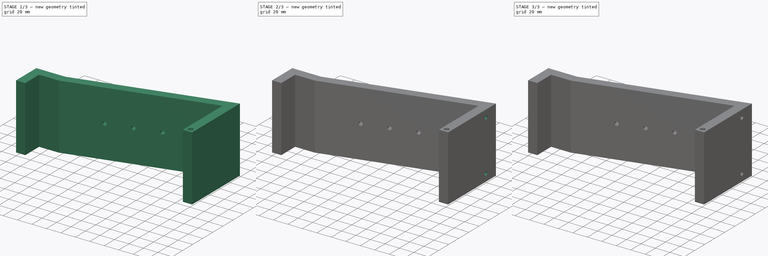
[diagram: build sequence overview — one tinted view per stage of 3, left to right]
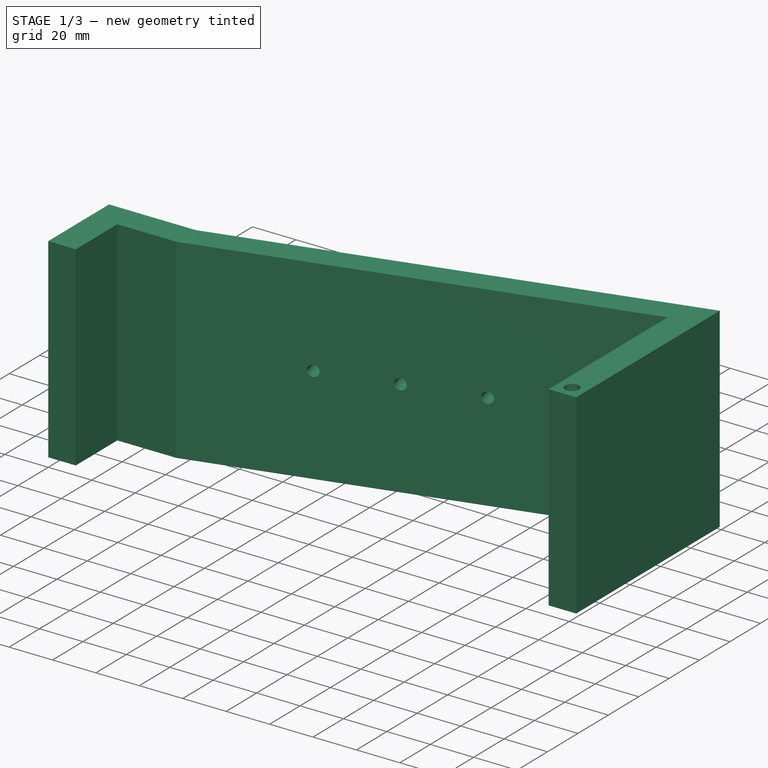
[diagram: stage 1 of 3 — iso view after this stage's code; geometry added in this stage tinted green]
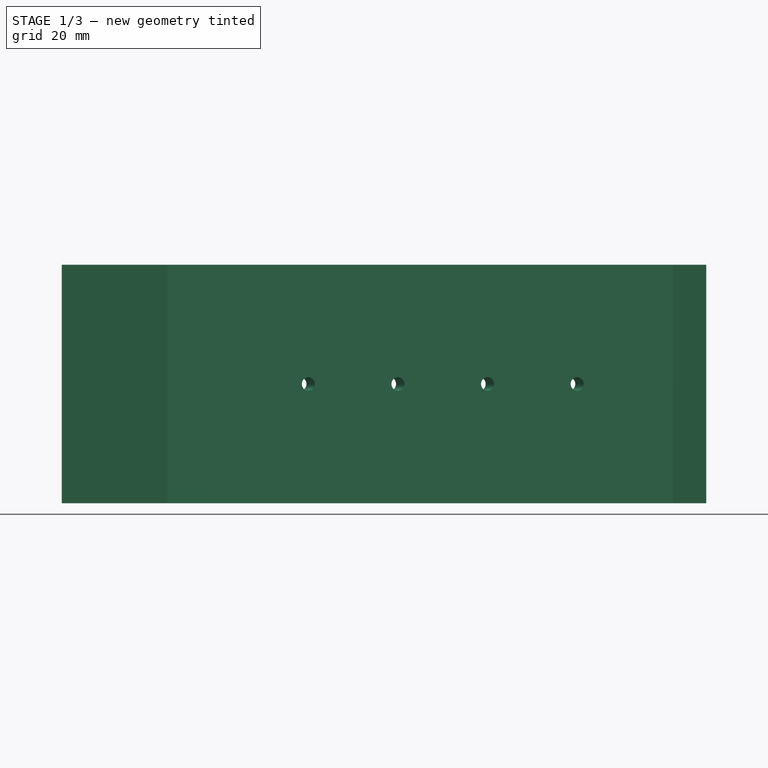
[diagram: stage 1 of 3 — front view after this stage's code; geometry added in this stage tinted green]
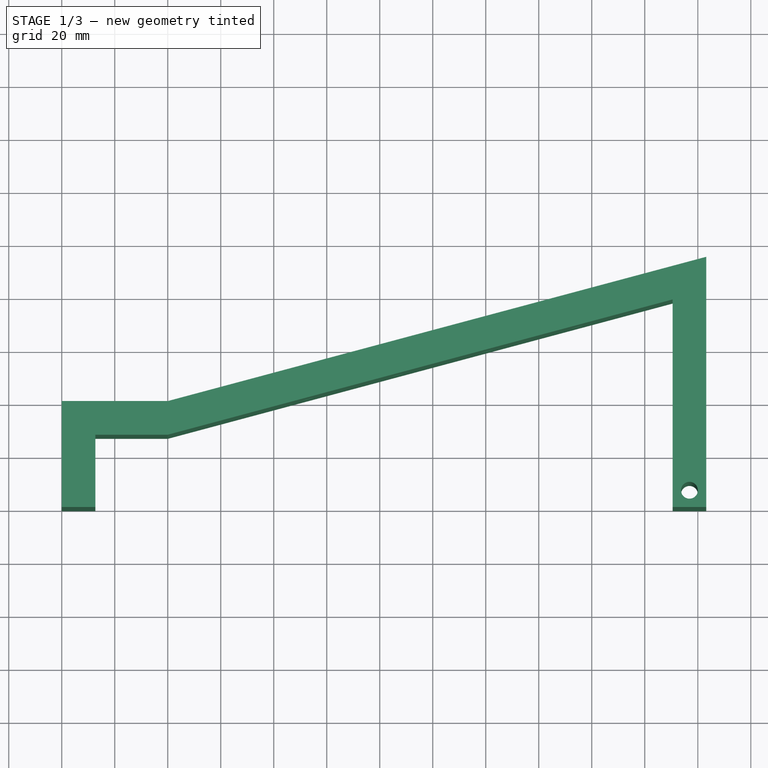
[diagram: stage 1 of 3 — top view after this stage's code; geometry added in this stage tinted green]
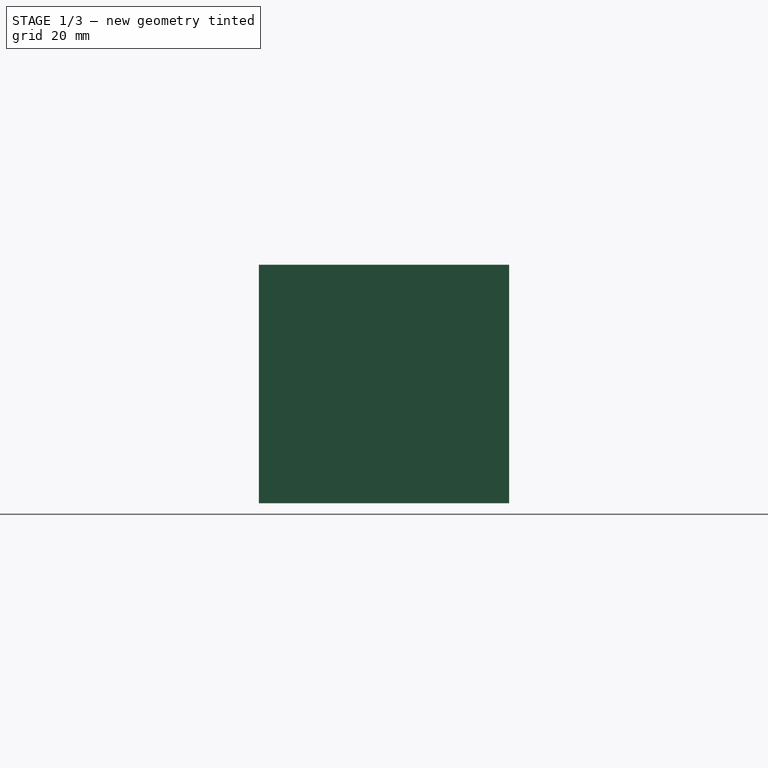
[diagram: stage 1 of 3 — right view after this stage's code; geometry added in this stage tinted green]
FCSTD DOCUMENT  (FreeCAD 1.0R39285 (Git))
Label: base
License: All rights reserved
LicenseURL: https://en.wikipedia.org/wiki/All_rights_reserved
objects: Sketcher::SketchObject×6, PartDesign::Pocket×4, PartDesign::Pad×2, PartDesign::Body×1, App::Part×1
note: 31 computed .brp shape members not serialized (recipe doc carries the construction recipe); baked Part::Feature solids carry a one-line shape summary decoded from their .brp

FEATURE [Sketcher::SketchObject] Sketch
  ArcFitTolerance = 1e-06
  AttachmentSupport = -> [XY_Plane001]
  FullyConstrained = true
  MakeInternals = false
  MapMode = 5
  sketch-geometry (11):
    g0: LineSegment StartX=-40 StartY=0 StartZ=0 EndX=-27.3 EndY=0 EndZ=0
    g1: LineSegment StartX=-27.3 StartY=0 StartZ=0 EndX=-27.3 EndY=27.3 EndZ=0
    g2: LineSegment StartX=-27.3 StartY=27.3 StartZ=0 EndX=0 EndY=27.3 EndZ=0
    g3: LineSegment StartX=0 StartY=27.3 StartZ=0 EndX=190.5 EndY=78.3443 EndZ=0
    g4: LineSegment StartX=190.5 StartY=78.3443 StartZ=0 EndX=190.5 EndY=0 EndZ=0
    g5: LineSegment StartX=190.5 StartY=0 StartZ=0 EndX=203.2 EndY=0 EndZ=0
    g6: LineSegment StartX=203.2 StartY=0 StartZ=0 EndX=203.2 EndY=94.4473 EndZ=0
    g7: LineSegment StartX=203.2 StartY=94.4473 StartZ=0 EndX=0 EndY=40 EndZ=0
    g8: LineSegment StartX=0 StartY=40 StartZ=0 EndX=-40 EndY=40 EndZ=0
    g9: LineSegment StartX=-40 StartY=40 StartZ=0 EndX=-40 EndY=0 EndZ=0
    g10: Circle CenterX=196.85 CenterY=6.35 CenterZ=0 NormalX=0 NormalY=0 NormalZ=1 AngleXU=0 Radius=3.175
  constraints (33):
    c: PointOnObject(g0,g-1)
    c: PointOnObject(g0,g-1)
    c: Coincident(g0,g1)
    c: Vertical(g1)
    c: Coincident(g1,g2)
    c: Horizontal(g2)
    c: Coincident(g2,g3)
    c: Coincident(g3,g4)
    c: PointOnObject(g4,g-1)
    c: Vertical(g4)
    c: Coincident(g4,g5)
    c: PointOnObject(g5,g-1)
    c: Coincident(g5,g6)
    c: Vertical(g6)
    c: Coincident(g6,g7)
    c: Coincident(g7,g8)
    c: Horizontal(g8)
    c: Coincident(g8,g9)
    c: Coincident(g9,g0)
    c: Vertical(g9)
    c: DistanceX(g8,g8) = 40
    c: DistanceX(g0,g0) = 12.7
    c: DistanceY(g9,g9) = 40
    c: DistanceY(g1,g8) = 12.7
    c: DistanceX(g2,g7) = 0
    c: DistanceX(g5,g5) = 12.7
    c: Angle(g3,g4) = 1.309
    c: Angle(g7,g6) = 1.309
    c: DistanceX(g2,g-1) = 0
    c: DistanceX(g7,g5) = 203.2
    c: Diameter(g10) = 6.35
    c: DistanceY(g-1,g10) = 6.35
    c: DistanceX(g-1,g10) = 196.85
FEATURE [PartDesign::Pad] Pad  label="MainPad"
  Direction = (0,0,1)
  Length = 90
  Length2 = 10
  Profile = -> Sketch
  ReferenceAxis = -> Sketch [N_Axis]
  Refine = true
  Suppressed = false
  Type = 0
FEATURE [Sketcher::SketchObject] Sketch001
  ArcFitTolerance = 1e-06
  AttachmentSupport = -> [Pad]
  FullyConstrained = true
  MakeInternals = false
  MapMode = 5
  Placement = pos=(-10,37.3205,0) rot=(-0.092692,0.704063,0.704063;3.32645rad)
  sketch-geometry (4):
    g0: Circle CenterX=-167 CenterY=45 CenterZ=0 NormalX=0 NormalY=0 NormalZ=1 AngleXU=0 Radius=2.55
    g1: Circle CenterX=-132 CenterY=45 CenterZ=0 NormalX=0 NormalY=0 NormalZ=1 AngleXU=0 Radius=2.55
    g2: Circle CenterX=-97 CenterY=45 CenterZ=0 NormalX=0 NormalY=0 NormalZ=1 AngleXU=0 Radius=2.55
    g3: Circle CenterX=-62 CenterY=45 CenterZ=0 NormalX=0 NormalY=0 NormalZ=1 AngleXU=0 Radius=2.55
  constraints (12):
    c: Diameter(g0) = 5.1
    c: Diameter(g1) = 5.1
    c: Diameter(g2) = 5.1
    c: Diameter(g3) = 5.1
    c: DistanceY(g0,g1) = 0
    c: DistanceY(g1,g2) = 0
    c: DistanceY(g2,g3) = 0
    c: DistanceY(g-1,g3) = 45
    c: DistanceX(g0,g1) = 35
    c: DistanceX(g1,g2) = 35
    c: DistanceX(g2,g3) = 35
    c: DistanceX(g3,g-1) = 62
FEATURE [PartDesign::Pocket] Pocket  label="AngleFaceHoles"
  BaseFeature = -> Pad
  Direction = (0.258819,-0.965926,0)
  Length = 5
  Length2 = 5
  Profile = -> Sketch001
  ReferenceAxis = -> Sketch001 [N_Axis]
  Refine = true
  Suppressed = false
  Type = 1
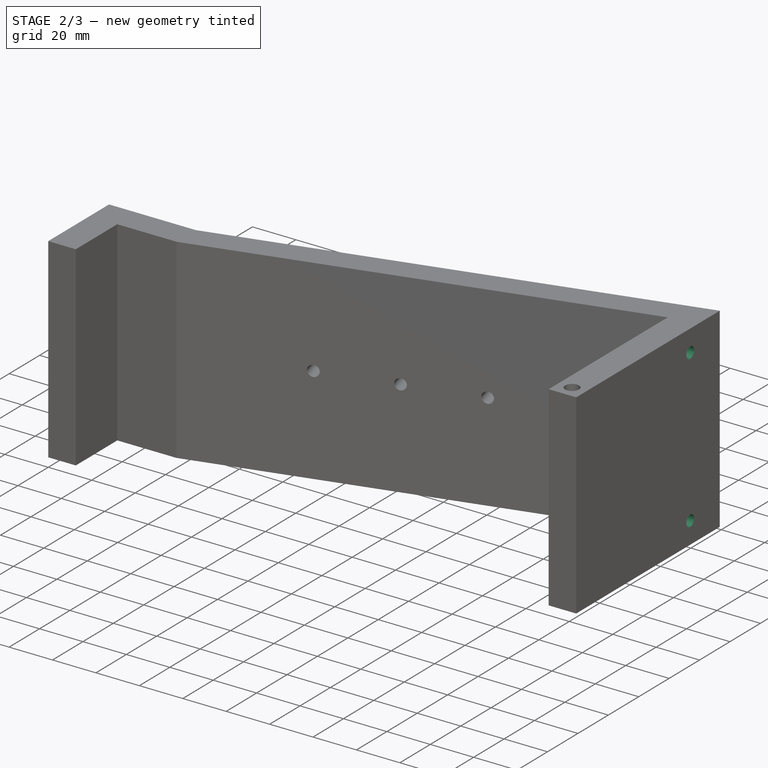
[diagram: stage 2 of 3 — iso view after this stage's code; geometry added in this stage tinted green]
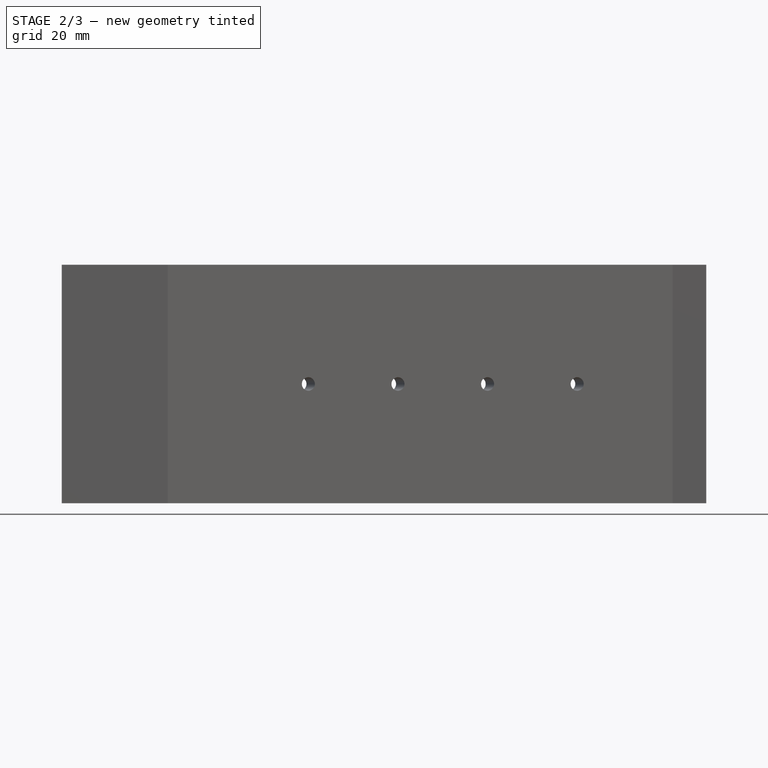
[diagram: stage 2 of 3 — front view after this stage's code; geometry added in this stage tinted green]
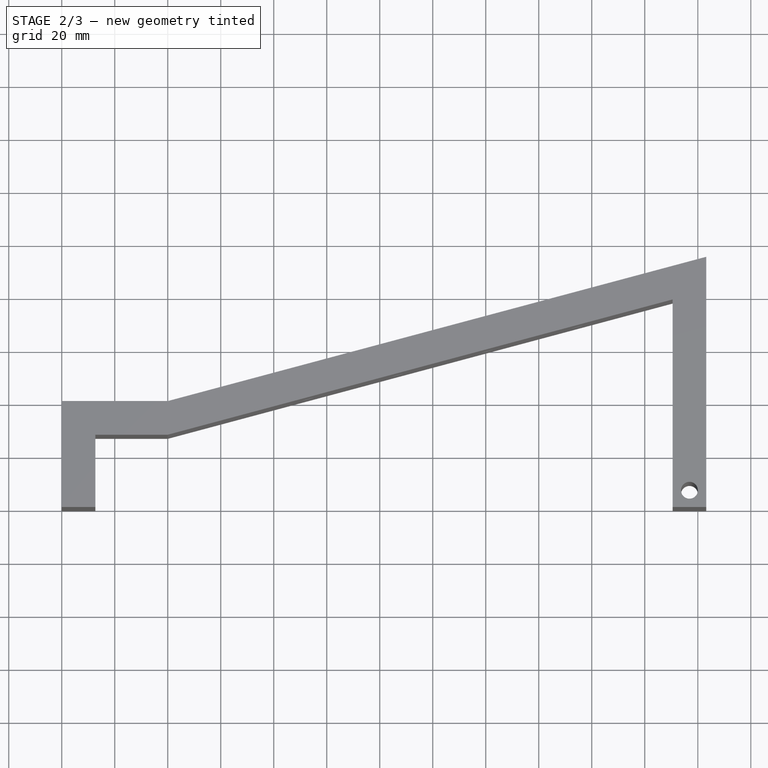
[diagram: stage 2 of 3 — top view after this stage's code; geometry added in this stage tinted green]
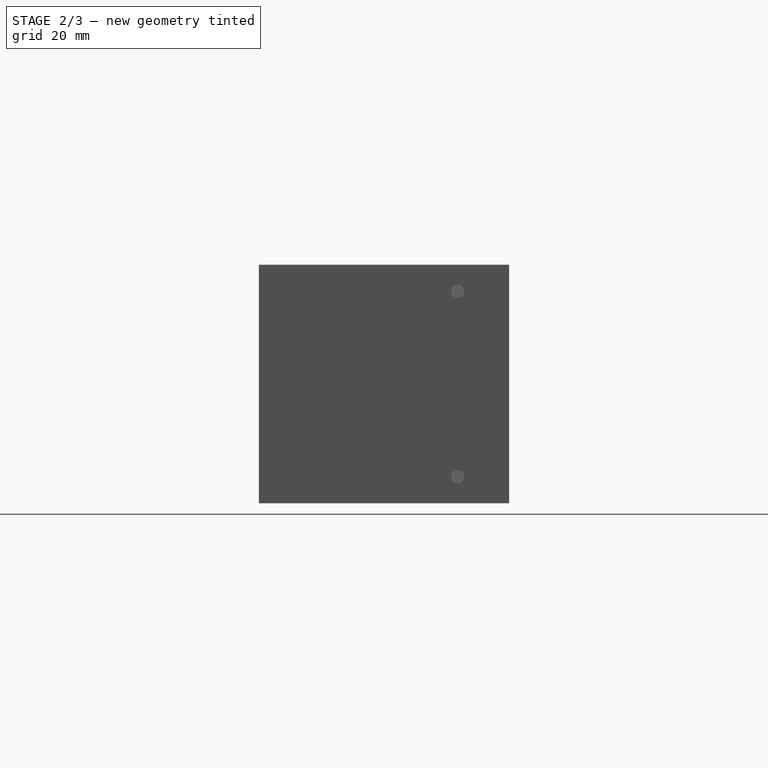
[diagram: stage 2 of 3 — right view after this stage's code; geometry added in this stage tinted green]
FEATURE [Sketcher::SketchObject] Sketch002
  ArcFitTolerance = 1e-06
  AttachmentSupport = -> [Pocket]
  FullyConstrained = true
  MakeInternals = false
  MapMode = 5
  Placement = pos=(-10,37.3205,0) rot=(-0.092692,0.704063,0.704063;3.32645rad)
  sketch-geometry (5):
    g0: Circle CenterX=-212 CenterY=63 CenterZ=0 NormalX=0 NormalY=0 NormalZ=1 AngleXU=0 Radius=7.55
    g1: Circle CenterX=-212 CenterY=27 CenterZ=0 NormalX=0 NormalY=0 NormalZ=1 AngleXU=0 Radius=7.55
    g2: Circle CenterX=-212 CenterY=9 CenterZ=0 NormalX=0 NormalY=0 NormalZ=1 AngleXU=0 Radius=7.55
    g3: Circle CenterX=-212 CenterY=81 CenterZ=0 NormalX=0 NormalY=0 NormalZ=1 AngleXU=0 Radius=7.55
    g4: Circle CenterX=-212 CenterY=45 CenterZ=0 NormalX=0 NormalY=0 NormalZ=1 AngleXU=0 Radius=7.55
  constraints (15):
    c: Diameter(g0) = 15.1
    c: Diameter(g1) = 15.1
    c: Diameter(g2) = 15.1
    c: DistanceX(g1,g0) = 0
    c: DistanceX(g1,g2) = 0
    c: DistanceY(g-1,g2) = 9
    c: DistanceX(g2,g-1) = 212
    c: Diameter(g3) = 15.1
    c: Diameter(g4) = 15.1
    c: DistanceX(g1,g4) = 0
    c: DistanceX(g3,g0) = 0
    c: DistanceY(g-1,g3) = 81
    c: DistanceY(g-1,g4) = 45
    c: DistanceY(g2,g1) = 18
    c: DistanceY(g4,g0) = 18
FEATURE [PartDesign::Pocket] Pocket001  label="MagPockets"
  BaseFeature = -> Pocket
  Direction = (0.258819,-0.965926,0)
  Length = 2.1
  Length2 = 5
  Profile = -> Sketch002
  ReferenceAxis = -> Sketch002 [N_Axis]
  Refine = true
  Suppressed = false
  Type = 0
FEATURE [Sketcher::SketchObject] Sketch004
  ArcFitTolerance = 1e-06
  FullyConstrained = true
  MakeInternals = false
  MapMode = 5
  Placement = pos=(203.2,0,0) rot=(0.57735,0.57735,0.57735;2.0944rad)
  sketch-geometry (2):
    g0: Circle CenterX=75 CenterY=80 CenterZ=0 NormalX=0 NormalY=0 NormalZ=1 AngleXU=0 Radius=2.55
    g1: Circle CenterX=75 CenterY=10 CenterZ=0 NormalX=0 NormalY=0 NormalZ=1 AngleXU=0 Radius=2.55
  constraints (6):
    c: Diameter(g0) = 5.1
    c: Diameter(g1) = 5.1
    c: DistanceX(g0,g1) = 0
    c: DistanceY(g-1,g1) = 10
    c: DistanceY(g-1,g0) = 80
    c: DistanceX(g-1,g0) = 75
FEATURE [PartDesign::Pocket] Pocket003  label="EdgeBladePockets"
  BaseFeature = -> Pocket001
  Direction = (-1,0,0)
  Length = 15
  Length2 = 5
  Profile = -> Sketch004
  ReferenceAxis = -> Sketch004 [N_Axis]
  Refine = true
  Suppressed = false
  Type = 0
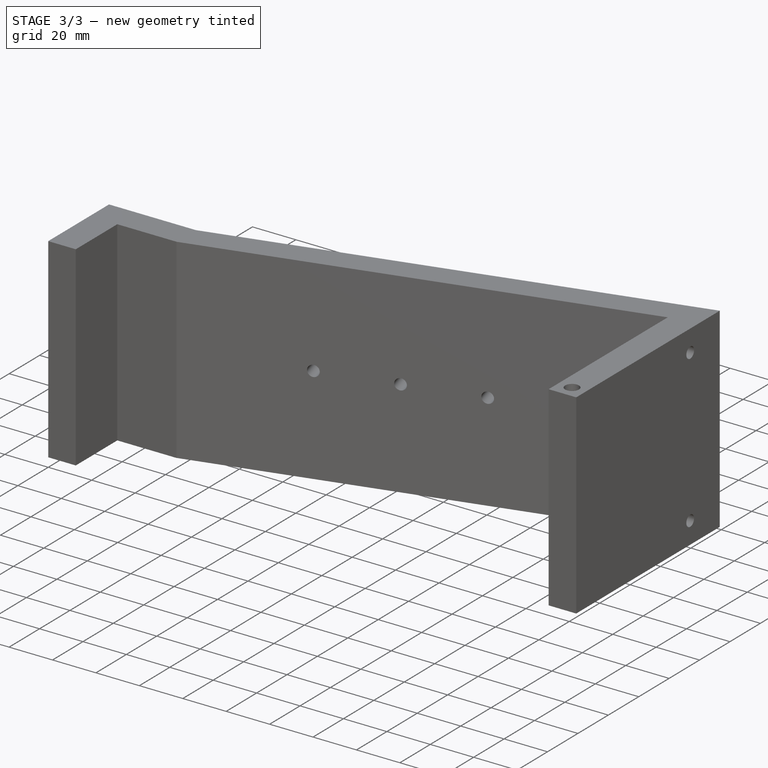
[diagram: stage 3 of 3 — iso view after this stage's code; geometry added in this stage tinted green]
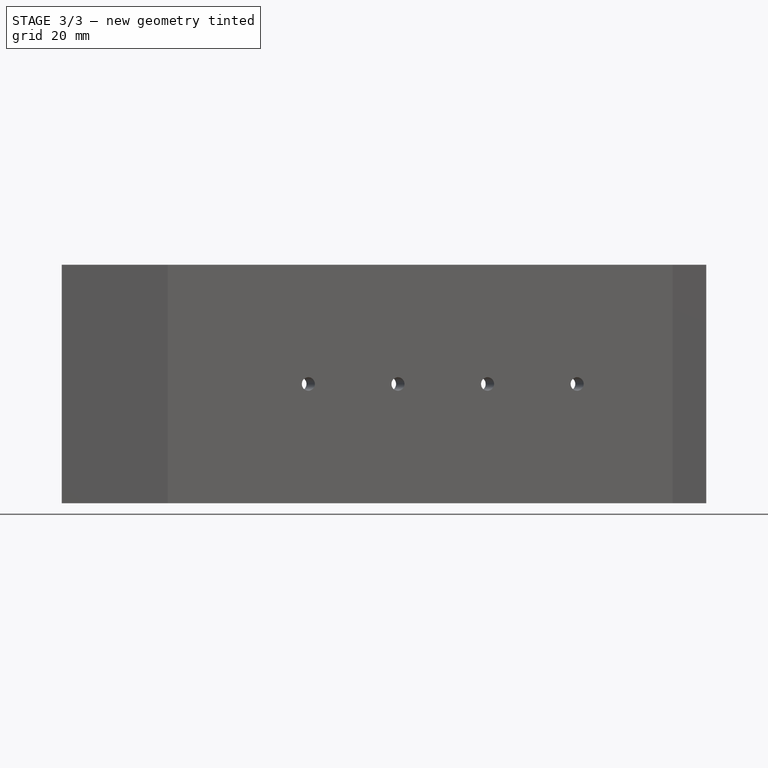
[diagram: stage 3 of 3 — front view after this stage's code; geometry added in this stage tinted green]
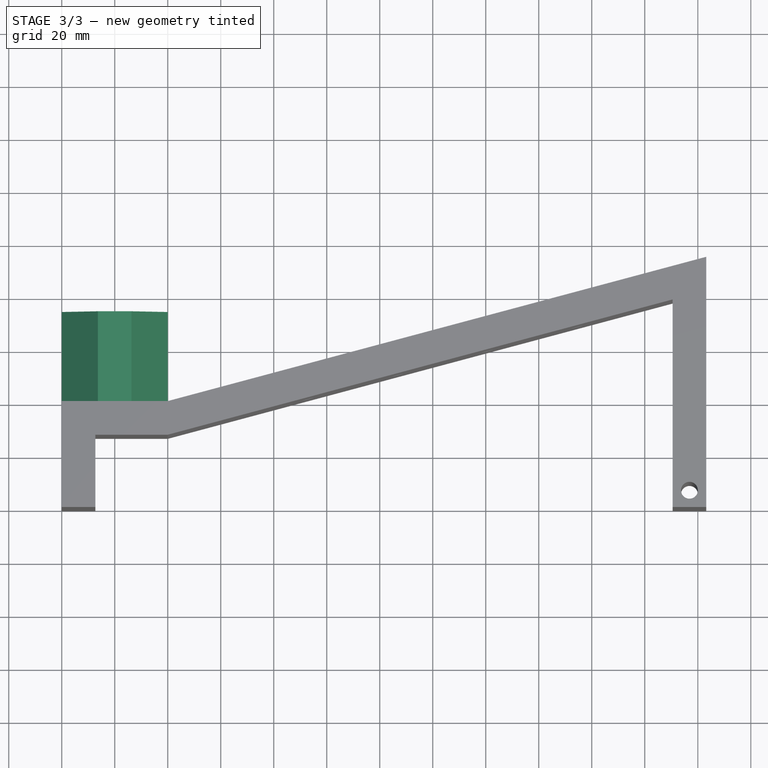
[diagram: stage 3 of 3 — top view after this stage's code; geometry added in this stage tinted green]
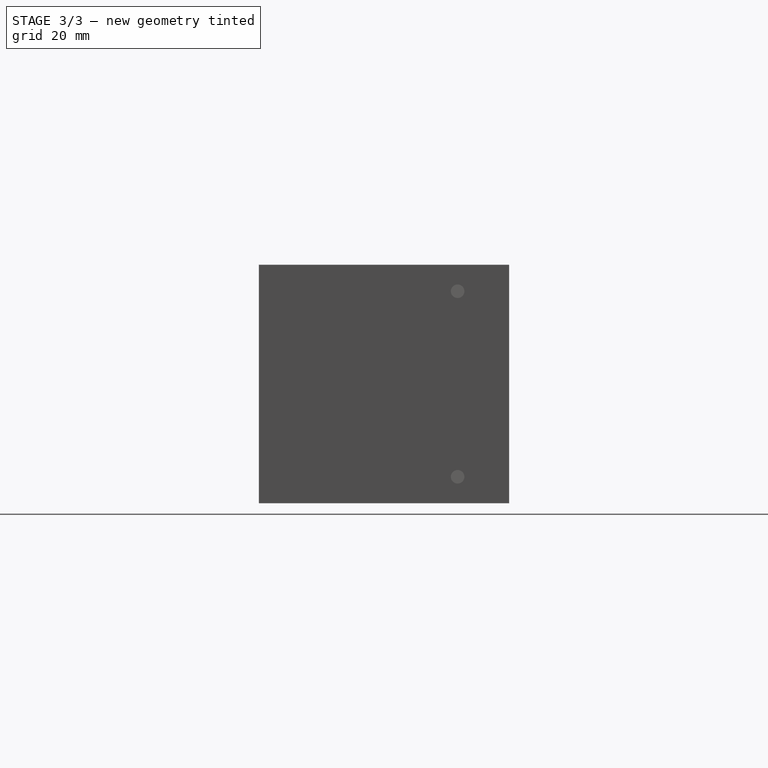
[diagram: stage 3 of 3 — right view after this stage's code; geometry added in this stage tinted green]
FEATURE [Sketcher::SketchObject] Sketch005
  ArcFitTolerance = 1e-06
  AttachmentSupport = -> [Pocket003]
  FullyConstrained = true
  MakeInternals = false
  MapMode = 5
  Placement = pos=(0,40,0) rot=(0,0.707107,0.707107;3.14159rad)
  sketch-geometry (7):
    g0: LineSegment StartX=0 StartY=0 StartZ=0 EndX=40 EndY=0 EndZ=0
    g1: LineSegment StartX=40 StartY=0 StartZ=0 EndX=40 EndY=10 EndZ=0
    g2: LineSegment StartX=40 StartY=10 StartZ=0 EndX=26.35 EndY=26 EndZ=0
    g3: LineSegment StartX=26.35 StartY=26 StartZ=0 EndX=13.65 EndY=26 EndZ=0
    g4: LineSegment StartX=13.65 StartY=26 StartZ=0 EndX=0 EndY=10 EndZ=0
    g5: LineSegment StartX=0 StartY=10 StartZ=0 EndX=0 EndY=0 EndZ=0
    g6: Circle CenterX=20 CenterY=16.35 CenterZ=0 NormalX=0 NormalY=0 NormalZ=1 AngleXU=0 Radius=6.35
  constraints (20):
    c: Coincident(g-1,g0)
    c: PointOnObject(g0,g-1)
    c: Coincident(g0,g1)
    c: Vertical(g1)
    c: Coincident(g1,g2)
    c: Coincident(g2,g3)
    c: Horizontal(g3)
    c: Coincident(g3,g4)
    c: PointOnObject(g4,g-2)
    c: Coincident(g4,g5)
    c: Coincident(g5,g0)
    c: DistanceY(g1,g4) = 0
    c: Diameter(g6) = 12.7
    c: DistanceX(g0,g6) = 20
    c: DistanceX(g3,g3) = 12.7
    c: DistanceX(g0,g3) = 13.65
    c: DistanceX(g0,g0) = 40
    c: DistanceY(g0,g6) = 16.35
    c: DistanceY(g0,g4) = 10
    c: DistanceY(g0,g3) = 26
FEATURE [PartDesign::Pad] Pad001  label="1_2Pad"
  BaseFeature = -> Pocket003
  Direction = (0,1,-2e-16)
  Length = 35
  Length2 = 10
  Profile = -> Sketch005
  ReferenceAxis = -> Sketch005 [N_Axis]
  Refine = true
  Suppressed = false
  Type = 0
FEATURE [Sketcher::SketchObject] Sketch006
  ArcFitTolerance = 1e-06
  AttachmentSupport = -> [Pad001]
  FullyConstrained = true
  MakeInternals = false
  MapMode = 5
  Placement = pos=(0,0,-7e-16) rot=(1,0,0;3.14159rad)
  sketch-geometry (1):
    g0: Circle CenterX=-20 CenterY=-57.5 CenterZ=0 NormalX=0 NormalY=0 NormalZ=1 AngleXU=0 Radius=2.55
  constraints (3):
    c: Diameter(g0) = 5.1
    c: DistanceX(g0,g-1) = 20
    c: DistanceY(g0,g-1) = 57.5
FEATURE [PartDesign::Pocket] Pocket004  label="EdgeScrewPocket"
  BaseFeature = -> Pad001
  Direction = (0,0,1)
  Length = 10
  Length2 = 5
  Profile = -> Sketch006
  ReferenceAxis = -> Sketch006 [N_Axis]
  Refine = true
  Suppressed = false
  Type = 0
FEATURE [PartDesign::Body] Body  label="BaseBody"
  AllowCompound = false
  Group = -> [Sketch,Pad,Sketch001,Pocket,Sketch002,Pocket001,Sketch004,Pocket003,Sketch005,Pad001,Sketch006,Pocket004]
  Origin = -> Origin001
  Tip = -> Pocket004
FEATURE [App::Part] Part  label="BasePart"
  Group = -> [Body]
  Origin = -> Origin
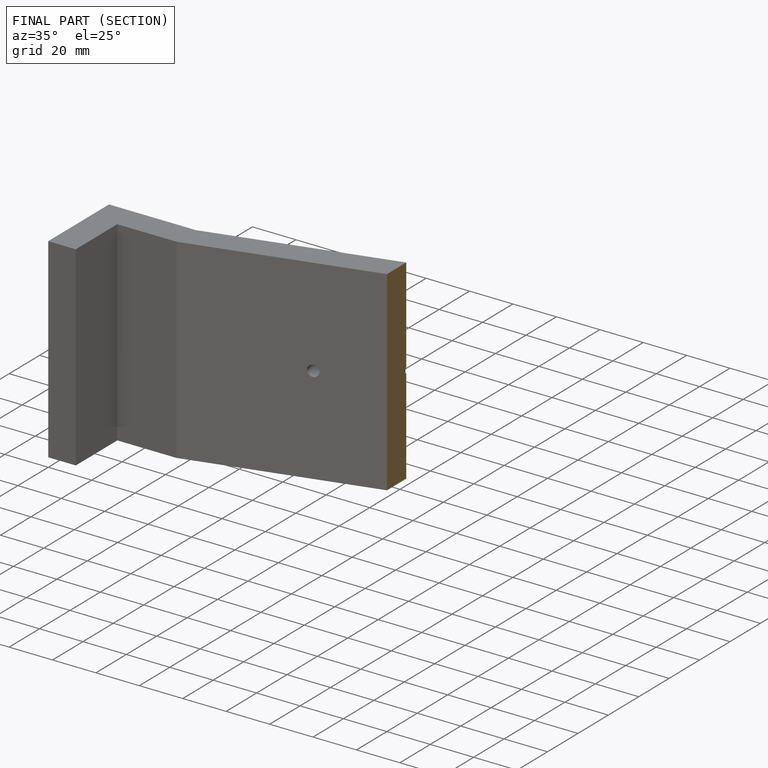
[diagram: finished part — half-section view (interior)]
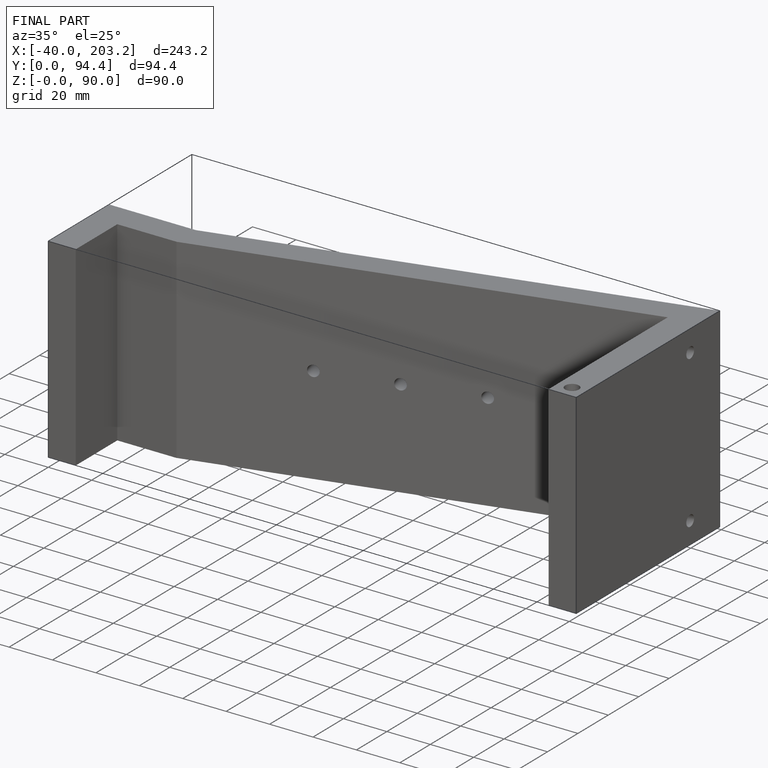
[diagram: finished part — iso view with bounding-box wireframe]
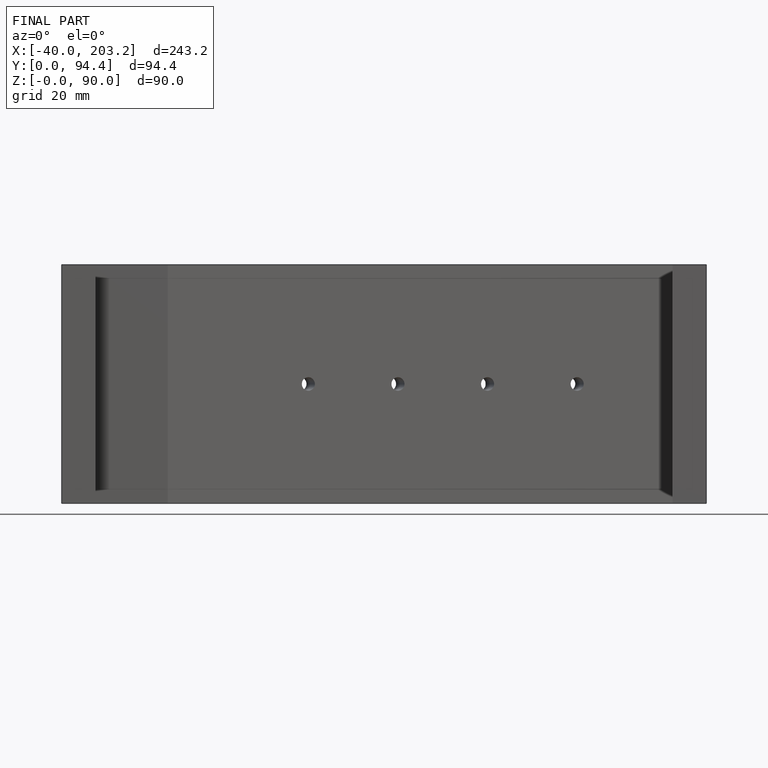
[diagram: finished part — front view with bounding-box wireframe]
